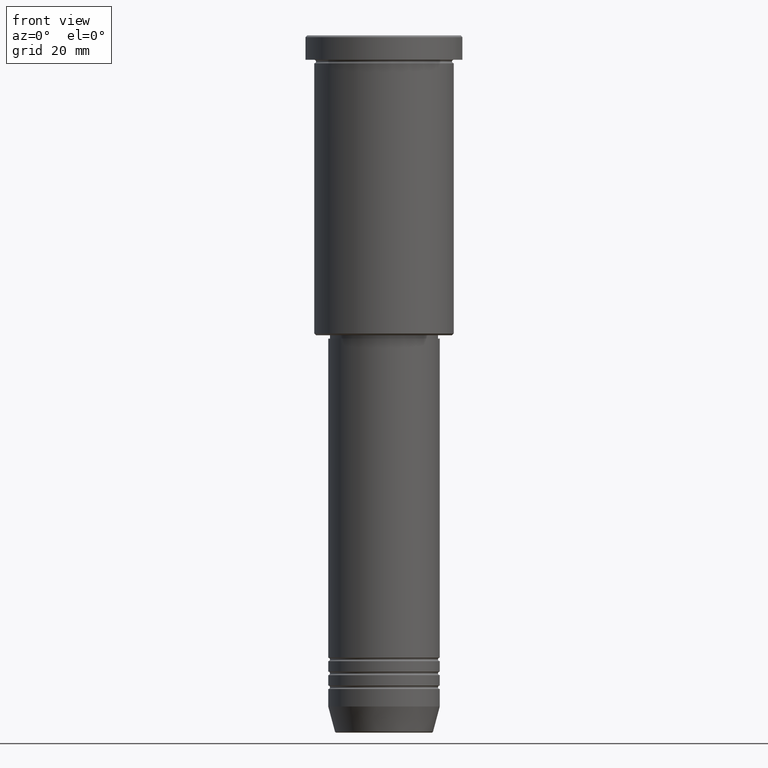
[diagram: clean part render]
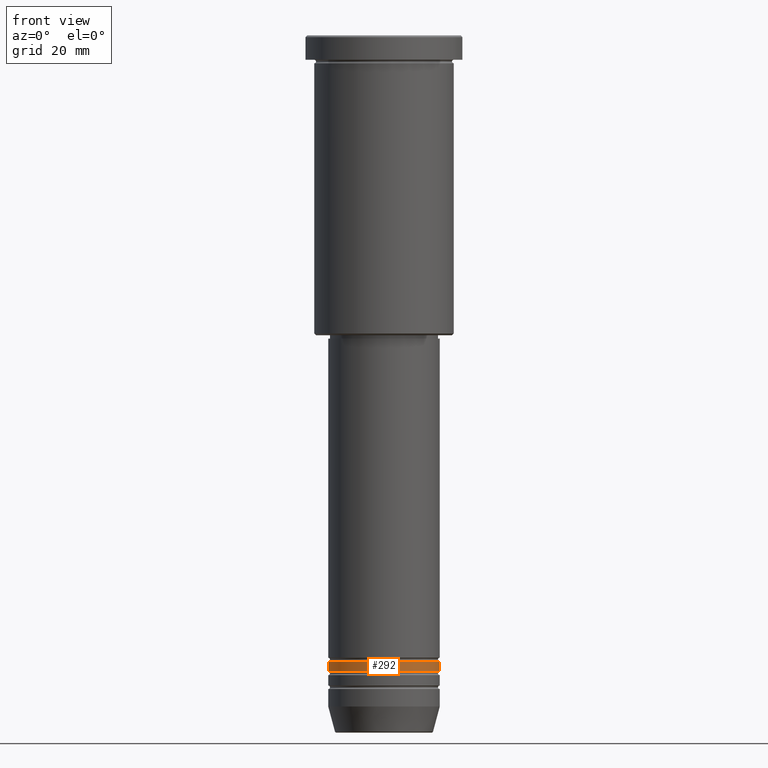
[diagram: same view with one face highlighted and labeled with its STEP entity id]
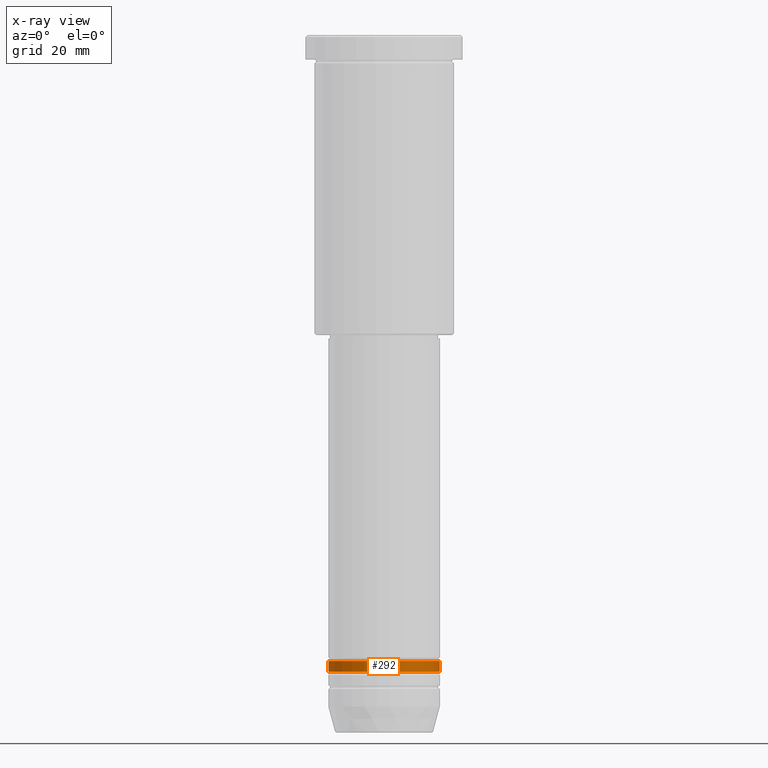
[diagram: x-ray of the same camera — body ghosted, the highlighted face saturated]
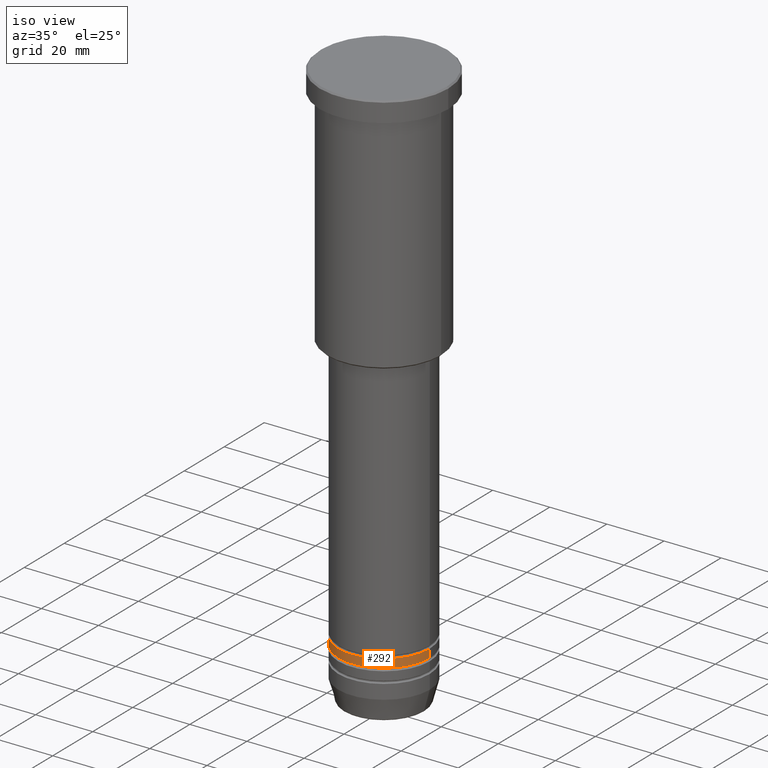
[diagram: same view with one face highlighted and labeled with its STEP entity id]
A machine part, front view. The second image highlights one B-rep face of the part: STEP entity #292.
The next image is the same camera in x-ray: the body ghosted, the highlighted face saturated — about 0% of this face is hidden behind the body in this view.
A second angle (iso view) of the same face is appended — the face is thin or edge-on in the first view.
In plain terms, the highlighted cylindrical surface (partial cylindrical patch) has radius 16 mm, axis along (-0, -0, 1).
Its self-contained STEP definition (entity closure, byte-faithful):
#27 = DIRECTION ( 'NONE',  ( 1.000000000000000000, 0.000000000000000000, 0.000000000000000000 ) ) ;
#76 = VERTEX_POINT ( 'NONE', #1018 ) ;
#84 = DIRECTION ( 'NONE',  ( 1.000000000000000000, 0.000000000000000000, 0.000000000000000000 ) ) ;
#96 = ORIENTED_EDGE ( 'NONE', *, *, #1028, .F. ) ;
#112 = EDGE_CURVE ( 'NONE', #962, #76, #596, .T. ) ;
#172 = DIRECTION ( 'NONE',  ( -0.000000000000000000, -0.000000000000000000, 1.000000000000000000 ) ) ;
#199 = LINE ( 'NONE', #567, #512 ) ;
#282 = CARTESIAN_POINT ( 'NONE',  ( -16.00000000000000355, 1.959434878635765526E-15, -182.5000000000000284 ) ) ;
#292 = ADVANCED_FACE ( 'NONE', ( #919 ), #757, .T. ) ;
#348 = VERTEX_POINT ( 'NONE', #282 ) ;
#369 = CIRCLE ( 'NONE', #1032, 16.00000000000000355 ) ;
#454 = VECTOR ( 'NONE', #601, 1000.000000000000000 ) ;
#512 = VECTOR ( 'NONE', #941, 1000.000000000000000 ) ;
#525 = EDGE_CURVE ( 'NONE', #348, #962, #369, .T. ) ;
#536 = EDGE_LOOP ( 'NONE', ( #96, #984, #866, #1133 ) ) ;
#567 = CARTESIAN_POINT ( 'NONE',  ( -16.00000000000000000, 1.959434878635765131E-15, 0.000000000000000000 ) ) ;
#596 = LINE ( 'NONE', #615, #454 ) ;
#601 = DIRECTION ( 'NONE',  ( -0.000000000000000000, -0.000000000000000000, 1.000000000000000000 ) ) ;
#615 = CARTESIAN_POINT ( 'NONE',  ( 16.00000000000000000, 0.000000000000000000, 0.000000000000000000 ) ) ;
#617 = DIRECTION ( 'NONE',  ( 1.000000000000000000, 0.000000000000000000, 0.000000000000000000 ) ) ;
#622 = CARTESIAN_POINT ( 'NONE',  ( 0.000000000000000000, 0.000000000000000000, -182.5000000000000284 ) ) ;
#635 = VERTEX_POINT ( 'NONE', #1066 ) ;
#677 = CARTESIAN_POINT ( 'NONE',  ( 16.00000000000000355, 0.000000000000000000, -182.5000000000000284 ) ) ;
#731 = AXIS2_PLACEMENT_3D ( 'NONE', #852, #769, #27 ) ;
#757 = CYLINDRICAL_SURFACE ( 'NONE', #841, 16.00000000000000000 ) ;
#769 = DIRECTION ( 'NONE',  ( -0.000000000000000000, -0.000000000000000000, 1.000000000000000000 ) ) ;
#841 = AXIS2_PLACEMENT_3D ( 'NONE', #911, #1029, #84 ) ;
#852 = CARTESIAN_POINT ( 'NONE',  ( 0.000000000000000000, 0.000000000000000000, -179.5000000000000284 ) ) ;
#859 = CIRCLE ( 'NONE', #731, 16.00000000000000000 ) ;
#866 = ORIENTED_EDGE ( 'NONE', *, *, #112, .T. ) ;
#911 = CARTESIAN_POINT ( 'NONE',  ( 0.000000000000000000, 0.000000000000000000, 0.000000000000000000 ) ) ;
#915 = EDGE_CURVE ( 'NONE', #635, #76, #859, .T. ) ;
#919 = FACE_OUTER_BOUND ( 'NONE', #536, .T. ) ;
#941 = DIRECTION ( 'NONE',  ( -0.000000000000000000, -0.000000000000000000, 1.000000000000000000 ) ) ;
#962 = VERTEX_POINT ( 'NONE', #677 ) ;
#984 = ORIENTED_EDGE ( 'NONE', *, *, #525, .T. ) ;
#1018 = CARTESIAN_POINT ( 'NONE',  ( 16.00000000000000000, 0.000000000000000000, -179.5000000000000284 ) ) ;
#1028 = EDGE_CURVE ( 'NONE', #348, #635, #199, .T. ) ;
#1029 = DIRECTION ( 'NONE',  ( -0.000000000000000000, -0.000000000000000000, 1.000000000000000000 ) ) ;
#1032 = AXIS2_PLACEMENT_3D ( 'NONE', #622, #172, #617 ) ;
#1066 = CARTESIAN_POINT ( 'NONE',  ( -16.00000000000000000, 1.959434878635765131E-15, -179.5000000000000284 ) ) ;
#1133 = ORIENTED_EDGE ( 'NONE', *, *, #915, .F. ) ;